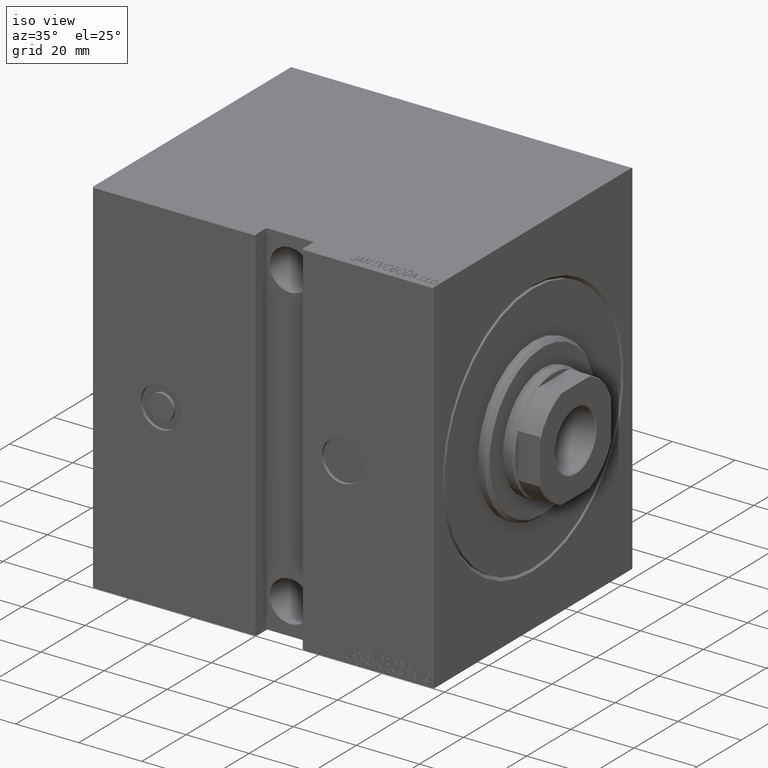
[diagram: clean part render]
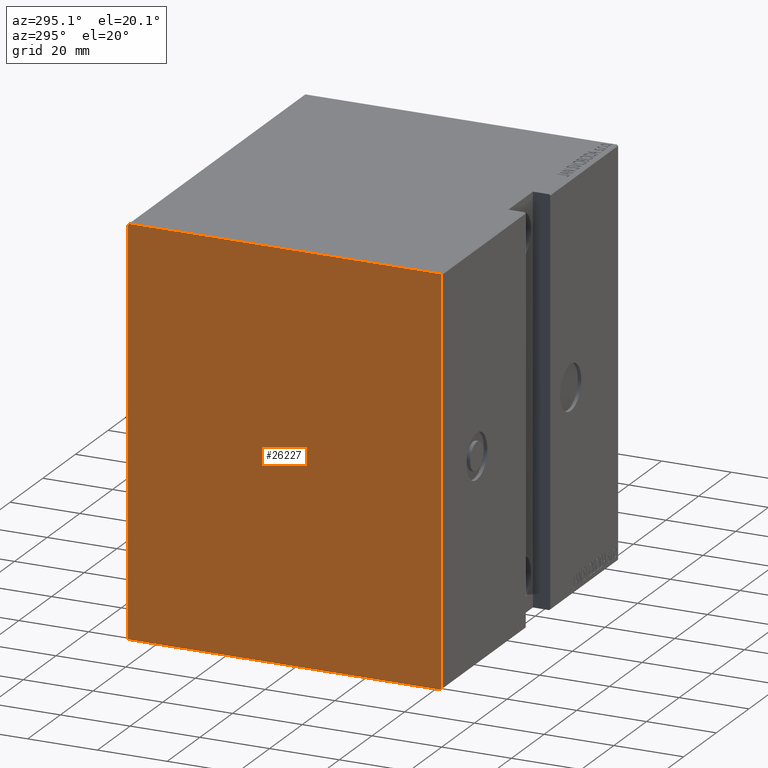
[diagram: tour spotlight — one face highlighted and labeled with its STEP entity id]
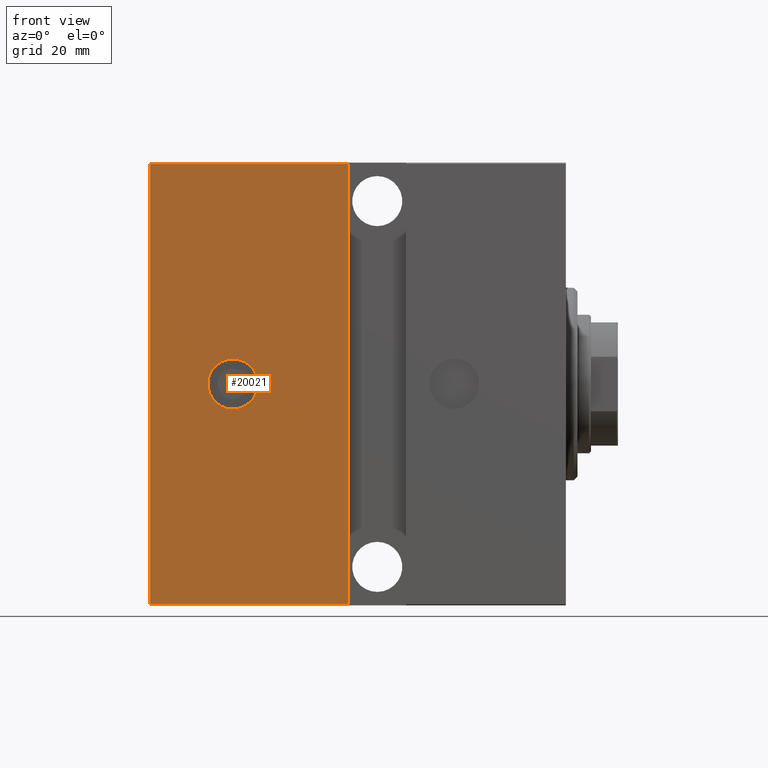
[diagram: tour spotlight — one face highlighted and labeled with its STEP entity id]
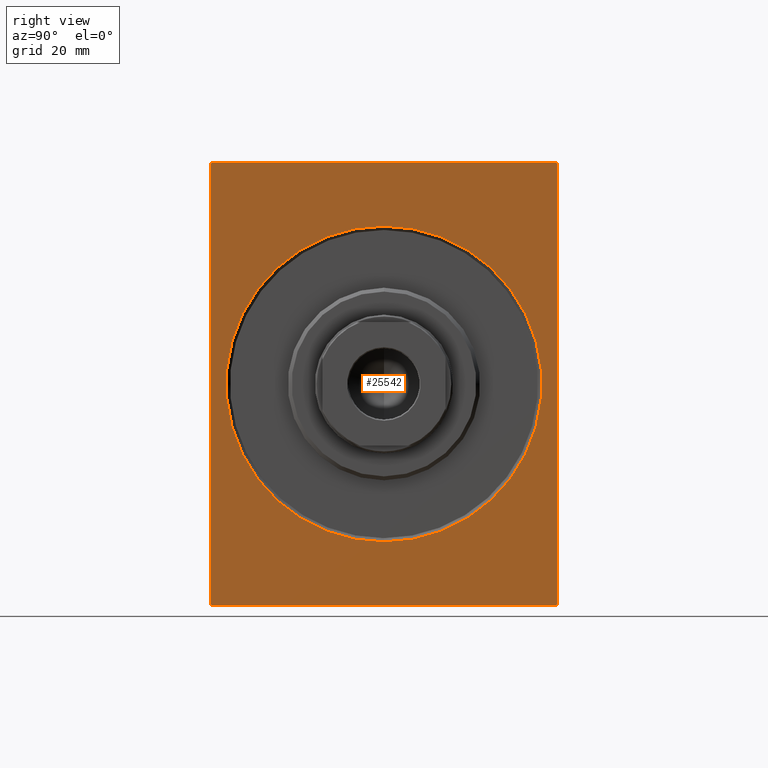
[diagram: tour spotlight — one face highlighted and labeled with its STEP entity id]
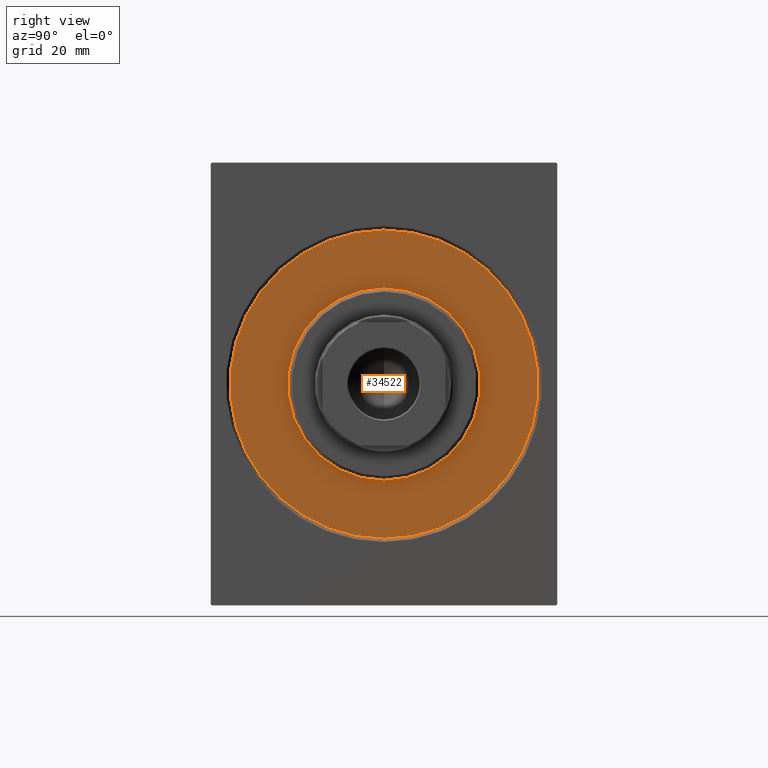
[diagram: tour spotlight — one face highlighted and labeled with its STEP entity id]
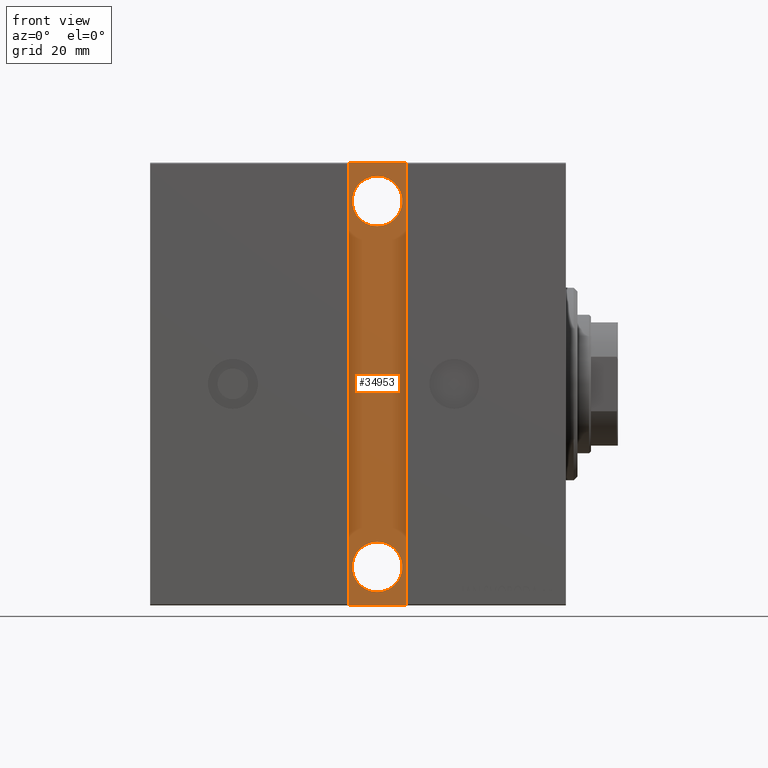
[diagram: tour spotlight — one face highlighted and labeled with its STEP entity id]
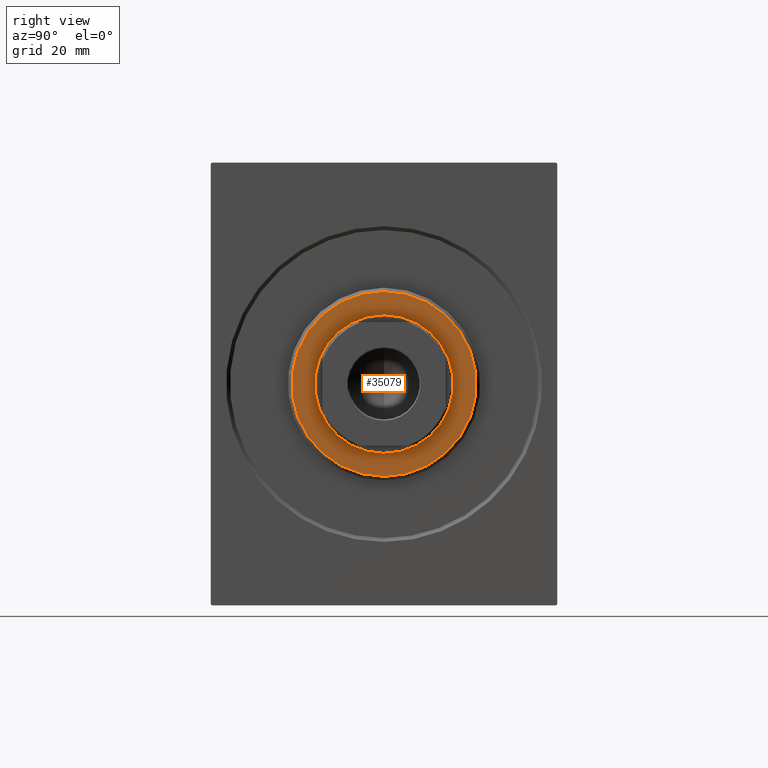
[diagram: tour spotlight — one face highlighted and labeled with its STEP entity id]
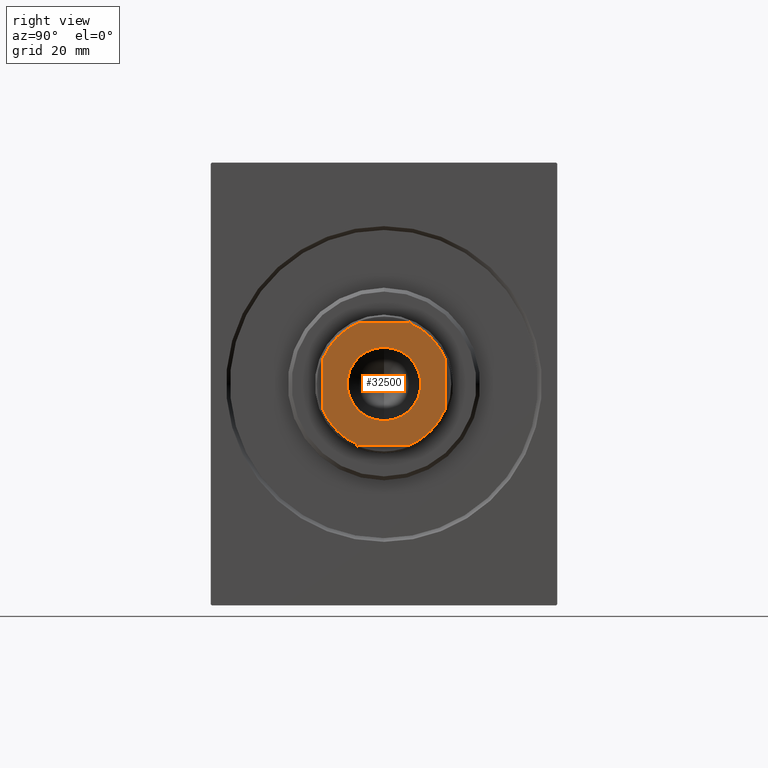
[diagram: tour spotlight — one face highlighted and labeled with its STEP entity id]
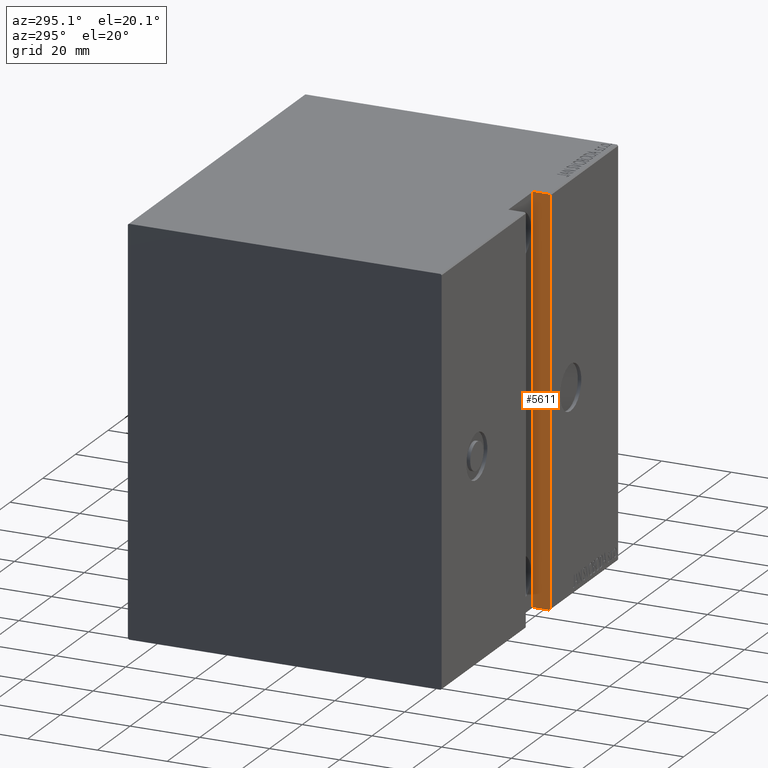
[diagram: tour spotlight — one face highlighted and labeled with its STEP entity id]
A machine part: a face-by-face anatomy tour. The part has 836 B-rep faces; the first image is the clean iso view, then the 8 largest visible faces are spotlighted one at a time (largest first), each with its STEP entity span.

Face 1 — auxiliary view, entity #26227. In plain terms, the highlighted planar face has unit normal (-1, 0, 0).
Definition (entity closure, byte-faithful):
#791 = LINE ( 'NONE', #40128, #38309 ) ;
#863 = VECTOR ( 'NONE', #30627, 1000.000000000000000 ) ;
#972 = CARTESIAN_POINT ( 'NONE',  ( 108.0000000000000000, -45.00000000000000000, -57.50000000000002132 ) ) ;
#1764 = DIRECTION ( 'NONE',  ( 1.000000000000000000, 0.000000000000000000, -0.000000000000000000 ) ) ;
#1981 = DIRECTION ( 'NONE',  ( -0.000000000000000000, 0.000000000000000000, -1.000000000000000000 ) ) ;
#2971 = EDGE_CURVE ( 'NONE', #36913, #36587, #4836, .T. ) ;
#4763 = ORIENTED_EDGE ( 'NONE', *, *, #13161, .T. ) ;
#4836 = LINE ( 'NONE', #21377, #9141 ) ;
#6172 = CARTESIAN_POINT ( 'NONE',  ( 108.0000000000000000, -45.00000000000000000, 57.20000000000000284 ) ) ;
#6655 = EDGE_CURVE ( 'NONE', #9335, #30089, #27615, .T. ) ;
#7834 = ORIENTED_EDGE ( 'NONE', *, *, #6655, .T. ) ;
#8430 = FACE_OUTER_BOUND ( 'NONE', #41883, .T. ) ;
#8501 = VERTEX_POINT ( 'NONE', #26160 ) ;
#8984 = EDGE_CURVE ( 'NONE', #8501, #36687, #19819, .T. ) ;
#9141 = VECTOR ( 'NONE', #17940, 1000.000000000000114 ) ;
#9335 = VERTEX_POINT ( 'NONE', #30719 ) ;
#9522 = LINE ( 'NONE', #26054, #13555 ) ;
#9946 = CARTESIAN_POINT ( 'NONE',  ( 108.0000000000000000, 45.00000000000001421, -57.50000000000000711 ) ) ;
#10151 = DIRECTION ( 'NONE',  ( 0.000000000000000000, -1.000000000000000000, -2.312964634635742957E-16 ) ) ;
#10888 = ORIENTED_EDGE ( 'NONE', *, *, #26812, .T. ) ;
#11133 = CARTESIAN_POINT ( 'NONE',  ( 108.0000000000000000, 44.70000000000001705, -57.50000000000000711 ) ) ;
#13161 = EDGE_CURVE ( 'NONE', #36587, #25335, #18937, .T. ) ;
#13555 = VECTOR ( 'NONE', #10151, 1000.000000000000000 ) ;
#15323 = EDGE_CURVE ( 'NONE', #30089, #8501, #15763, .T. ) ;
#15763 = LINE ( 'NONE', #32306, #25111 ) ;
#16390 = VERTEX_POINT ( 'NONE', #30720 ) ;
#17940 = DIRECTION ( 'NONE',  ( -0.000000000000000000, -0.7071067811865474617, -0.7071067811865474617 ) ) ;
#18093 = PLANE ( 'NONE',  #37593 ) ;
#18851 = ORIENTED_EDGE ( 'NONE', *, *, #15323, .T. ) ;
#18929 = CARTESIAN_POINT ( 'NONE',  ( 108.0000000000000000, 0.000000000000000000, 0.000000000000000000 ) ) ;
#18937 = LINE ( 'NONE', #19148, #22977 ) ;
#19148 = CARTESIAN_POINT ( 'NONE',  ( 108.0000000000000000, -45.00000000000000000, 57.49999999999999289 ) ) ;
#19359 = ORIENTED_EDGE ( 'NONE', *, *, #8984, .T. ) ;
#19819 = LINE ( 'NONE', #9946, #20126 ) ;
#20126 = VECTOR ( 'NONE', #32931, 1000.000000000000000 ) ;
#21377 = CARTESIAN_POINT ( 'NONE',  ( 108.0000000000000000, -51.10000000000000853, 51.10000000000000853 ) ) ;
#22977 = VECTOR ( 'NONE', #41727, 1000.000000000000000 ) ;
#23351 = DIRECTION ( 'NONE',  ( -0.000000000000000000, 0.7071067811865474617, -0.7071067811865474617 ) ) ;
#25111 = VECTOR ( 'NONE', #35320, 1000.000000000000114 ) ;
#25335 = VERTEX_POINT ( 'NONE', #29230 ) ;
#26054 = CARTESIAN_POINT ( 'NONE',  ( 108.0000000000000000, 45.00000000000001421, 57.50000000000001421 ) ) ;
#26099 = EDGE_CURVE ( 'NONE', #16390, #36913, #9522, .T. ) ;
#26160 = CARTESIAN_POINT ( 'NONE',  ( 108.0000000000000000, 45.00000000000001421, -57.20000000000004547 ) ) ;
#26227 = ADVANCED_FACE ( 'NONE', ( #8430 ), #18093, .T. ) ;
#26351 = EDGE_CURVE ( 'NONE', #36687, #16390, #39322, .T. ) ;
#26812 = EDGE_CURVE ( 'NONE', #25335, #9335, #791, .T. ) ;
#27615 = LINE ( 'NONE', #972, #863 ) ;
#28274 = ORIENTED_EDGE ( 'NONE', *, *, #26351, .T. ) ;
#29230 = CARTESIAN_POINT ( 'NONE',  ( 108.0000000000000000, -45.00000000000000000, -57.20000000000003126 ) ) ;
#29743 = CARTESIAN_POINT ( 'NONE',  ( 108.0000000000000000, -44.69999999999997442, 57.49999999999999289 ) ) ;
#30089 = VERTEX_POINT ( 'NONE', #11133 ) ;
#30627 = DIRECTION ( 'NONE',  ( 0.000000000000000000, 1.000000000000000000, 1.541976423090495140E-16 ) ) ;
#30719 = CARTESIAN_POINT ( 'NONE',  ( 108.0000000000000000, -44.70000000000003126, -57.50000000000002132 ) ) ;
#30720 = CARTESIAN_POINT ( 'NONE',  ( 108.0000000000000000, 44.70000000000001705, 57.50000000000001421 ) ) ;
#32306 = CARTESIAN_POINT ( 'NONE',  ( 108.0000000000000000, 51.10000000000002984, -51.10000000000002984 ) ) ;
#32931 = DIRECTION ( 'NONE',  ( 0.000000000000000000, 0.000000000000000000, 1.000000000000000000 ) ) ;
#33077 = DIRECTION ( 'NONE',  ( -0.000000000000000000, -0.7071067811865393571, 0.7071067811865556774 ) ) ;
#34483 = ORIENTED_EDGE ( 'NONE', *, *, #26099, .T. ) ;
#35222 = ORIENTED_EDGE ( 'NONE', *, *, #2971, .T. ) ;
#35320 = DIRECTION ( 'NONE',  ( -0.000000000000000000, 0.7071067811865474617, 0.7071067811865474617 ) ) ;
#35467 = CARTESIAN_POINT ( 'NONE',  ( 108.0000000000000000, 51.10000000000053433, 51.09999999999935483 ) ) ;
#36587 = VERTEX_POINT ( 'NONE', #6172 ) ;
#36687 = VERTEX_POINT ( 'NONE', #37517 ) ;
#36913 = VERTEX_POINT ( 'NONE', #29743 ) ;
#37517 = CARTESIAN_POINT ( 'NONE',  ( 108.0000000000000000, 45.00000000000001421, 57.19999999999998863 ) ) ;
#37593 = AXIS2_PLACEMENT_3D ( 'NONE', #18929, #1764, #1981 ) ;
#38309 = VECTOR ( 'NONE', #23351, 1000.000000000000114 ) ;
#39322 = LINE ( 'NONE', #35467, #41035 ) ;
#40128 = CARTESIAN_POINT ( 'NONE',  ( 108.0000000000000000, -51.10000000000002984, -51.10000000000002984 ) ) ;
#41035 = VECTOR ( 'NONE', #33077, 1000.000000000000000 ) ;
#41727 = DIRECTION ( 'NONE',  ( 0.000000000000000000, 0.000000000000000000, -1.000000000000000000 ) ) ;
#41883 = EDGE_LOOP ( 'NONE', ( #7834, #18851, #19359, #28274, #34483, #35222, #4763, #10888 ) ) ;

Face 2 — front view, entity #20021. In plain terms, the highlighted planar face has unit normal (0, 1, 0).
Definition (entity closure, byte-faithful):
#2429 = PLANE ( 'NONE',  #39606 ) ;
#3323 = CARTESIAN_POINT ( 'NONE',  ( 56.50000000000000000, 45.00000000000001421, -57.50000000000000711 ) ) ;
#6133 = EDGE_CURVE ( 'NONE', #8501, #40242, #26484, .T. ) ;
#7499 = DIRECTION ( 'NONE',  ( 2.465190328815661345E-32, 1.000000000000000000, 1.241259582663617744E-16 ) ) ;
#7709 = DIRECTION ( 'NONE',  ( 0.000000000000000000, 0.000000000000000000, 1.000000000000000000 ) ) ;
#8501 = VERTEX_POINT ( 'NONE', #26160 ) ;
#8984 = EDGE_CURVE ( 'NONE', #8501, #36687, #19819, .T. ) ;
#9556 = AXIS2_PLACEMENT_3D ( 'NONE', #20165, #10084, #7709 ) ;
#9946 = CARTESIAN_POINT ( 'NONE',  ( 108.0000000000000000, 45.00000000000001421, -57.50000000000000711 ) ) ;
#10084 = DIRECTION ( 'NONE',  ( 2.465190328815661345E-32, 1.000000000000000000, 1.241259582663617744E-16 ) ) ;
#10676 = CARTESIAN_POINT ( 'NONE',  ( 56.50000000000000000, 45.00000000000001421, -57.20000000000004547 ) ) ;
#10987 = CARTESIAN_POINT ( 'NONE',  ( 108.0000000000000000, 45.00000000000001421, 57.20000000000001705 ) ) ;
#11420 = DIRECTION ( 'NONE',  ( 1.000000000000000000, 0.000000000000000000, 0.000000000000000000 ) ) ;
#11473 = FACE_BOUND ( 'NONE', #18542, .T. ) ;
#11660 = CARTESIAN_POINT ( 'NONE',  ( 86.50000000000000000, 45.00000000000001421, 6.500000000000001776 ) ) ;
#11668 = CARTESIAN_POINT ( 'NONE',  ( 56.50000000000001421, 45.00000000000001421, 57.20000000000001705 ) ) ;
#11872 = EDGE_CURVE ( 'NONE', #33043, #40242, #39223, .T. ) ;
#12107 = DIRECTION ( 'NONE',  ( 0.000000000000000000, -0.000000000000000000, -1.000000000000000000 ) ) ;
#12178 = DIRECTION ( 'NONE',  ( -1.206764157201257291E-16, -0.000000000000000000, -1.000000000000000000 ) ) ;
#16198 = VERTEX_POINT ( 'NONE', #11660 ) ;
#16950 = DIRECTION ( 'NONE',  ( 0.000000000000000000, 0.000000000000000000, 1.000000000000000000 ) ) ;
#17623 = EDGE_CURVE ( 'NONE', #33043, #36687, #24083, .T. ) ;
#18542 = EDGE_LOOP ( 'NONE', ( #24385, #26510 ) ) ;
#18745 = CIRCLE ( 'NONE', #40678, 6.500000000000001776 ) ;
#19186 = CIRCLE ( 'NONE', #9556, 6.500000000000001776 ) ;
#19774 = ORIENTED_EDGE ( 'NONE', *, *, #11872, .F. ) ;
#19819 = LINE ( 'NONE', #9946, #20126 ) ;
#20021 = ADVANCED_FACE ( 'NONE', ( #11473, #37685 ), #2429, .F. ) ;
#20126 = VECTOR ( 'NONE', #32931, 1000.000000000000000 ) ;
#20165 = CARTESIAN_POINT ( 'NONE',  ( 86.50000000000000000, 45.00000000000001421, 2.685769492758762498E-31 ) ) ;
#20196 = ORIENTED_EDGE ( 'NONE', *, *, #8984, .F. ) ;
#21360 = ORIENTED_EDGE ( 'NONE', *, *, #17623, .T. ) ;
#22172 = EDGE_LOOP ( 'NONE', ( #20196, #22942, #19774, #21360 ) ) ;
#22942 = ORIENTED_EDGE ( 'NONE', *, *, #6133, .T. ) ;
#23477 = DIRECTION ( 'NONE',  ( -1.000000000000000000, 0.000000000000000000, 0.000000000000000000 ) ) ;
#24083 = LINE ( 'NONE', #10987, #32047 ) ;
#24385 = ORIENTED_EDGE ( 'NONE', *, *, #29965, .F. ) ;
#25860 = CARTESIAN_POINT ( 'NONE',  ( 108.0000000000000000, 45.00000000000001421, -57.20000000000004547 ) ) ;
#26160 = CARTESIAN_POINT ( 'NONE',  ( 108.0000000000000000, 45.00000000000001421, -57.20000000000004547 ) ) ;
#26484 = LINE ( 'NONE', #25860, #28323 ) ;
#26510 = ORIENTED_EDGE ( 'NONE', *, *, #37662, .F. ) ;
#28060 = VERTEX_POINT ( 'NONE', #34841 ) ;
#28323 = VECTOR ( 'NONE', #23477, 1000.000000000000000 ) ;
#29852 = CARTESIAN_POINT ( 'NONE',  ( 86.50000000000000000, 45.00000000000001421, 2.685769492758762498E-31 ) ) ;
#29965 = EDGE_CURVE ( 'NONE', #16198, #28060, #19186, .T. ) ;
#31669 = CARTESIAN_POINT ( 'NONE',  ( 108.0000000000000000, 45.00000000000001421, -57.50000000000000711 ) ) ;
#32047 = VECTOR ( 'NONE', #11420, 1000.000000000000000 ) ;
#32591 = VECTOR ( 'NONE', #12178, 1000.000000000000000 ) ;
#32931 = DIRECTION ( 'NONE',  ( 0.000000000000000000, 0.000000000000000000, 1.000000000000000000 ) ) ;
#33043 = VERTEX_POINT ( 'NONE', #11668 ) ;
#34841 = CARTESIAN_POINT ( 'NONE',  ( 86.50000000000000000, 45.00000000000001421, -6.500000000000001776 ) ) ;
#36687 = VERTEX_POINT ( 'NONE', #37517 ) ;
#37517 = CARTESIAN_POINT ( 'NONE',  ( 108.0000000000000000, 45.00000000000001421, 57.19999999999998863 ) ) ;
#37662 = EDGE_CURVE ( 'NONE', #28060, #16198, #18745, .T. ) ;
#37685 = FACE_OUTER_BOUND ( 'NONE', #22172, .T. ) ;
#38323 = DIRECTION ( 'NONE',  ( 0.000000000000000000, -1.000000000000000000, 0.000000000000000000 ) ) ;
#39223 = LINE ( 'NONE', #3323, #32591 ) ;
#39606 = AXIS2_PLACEMENT_3D ( 'NONE', #31669, #38323, #12107 ) ;
#40242 = VERTEX_POINT ( 'NONE', #10676 ) ;
#40678 = AXIS2_PLACEMENT_3D ( 'NONE', #29852, #7499, #16950 ) ;

Face 3 — right view, entity #25542. In plain terms, the highlighted planar face has unit normal (-1, 0, 0).
Definition (entity closure, byte-faithful):
#848 = ORIENTED_EDGE ( 'NONE', *, *, #33505, .T. ) ;
#854 = VERTEX_POINT ( 'NONE', #27851 ) ;
#1231 = DIRECTION ( 'NONE',  ( -0.000000000000000000, -0.7071067811865474617, -0.7071067811865474617 ) ) ;
#1509 = LINE ( 'NONE', #31607, #6663 ) ;
#2765 = VECTOR ( 'NONE', #1231, 1000.000000000000114 ) ;
#2966 = EDGE_CURVE ( 'NONE', #854, #7476, #8280, .T. ) ;
#3491 = DIRECTION ( 'NONE',  ( 0.000000000000000000, 0.000000000000000000, -1.000000000000000000 ) ) ;
#4029 = LINE ( 'NONE', #30036, #2765 ) ;
#4246 = EDGE_CURVE ( 'NONE', #32476, #7476, #7961, .T. ) ;
#4333 = CARTESIAN_POINT ( 'NONE',  ( 0.000000000000000000, -44.70000000000003126, -57.50000000000002132 ) ) ;
#4493 = ORIENTED_EDGE ( 'NONE', *, *, #4246, .T. ) ;
#4513 = VECTOR ( 'NONE', #10150, 1000.000000000000114 ) ;
#4732 = DIRECTION ( 'NONE',  ( -0.000000000000000000, 0.7071067811865393571, -0.7071067811865556774 ) ) ;
#4954 = ORIENTED_EDGE ( 'NONE', *, *, #15455, .T. ) ;
#5807 = CARTESIAN_POINT ( 'NONE',  ( 0.000000000000000000, -44.69999999999997442, 57.49999999999999289 ) ) ;
#5990 = AXIS2_PLACEMENT_3D ( 'NONE', #37162, #8370, #41465 ) ;
#6363 = ORIENTED_EDGE ( 'NONE', *, *, #17450, .T. ) ;
#6622 = VERTEX_POINT ( 'NONE', #33630 ) ;
#6663 = VECTOR ( 'NONE', #31395, 1000.000000000000000 ) ;
#6725 = CARTESIAN_POINT ( 'NONE',  ( 0.000000000000000000, 0.000000000000000000, 0.000000000000000000 ) ) ;
#7024 = DIRECTION ( 'NONE',  ( 0.000000000000000000, 1.000000000000000000, 1.541976423090495140E-16 ) ) ;
#7114 = CARTESIAN_POINT ( 'NONE',  ( 0.000000000000000000, 5.021051876504148963E-15, -41.00000000000000711 ) ) ;
#7476 = VERTEX_POINT ( 'NONE', #7485 ) ;
#7485 = CARTESIAN_POINT ( 'NONE',  ( 0.000000000000000000, 45.00000000000001421, 57.19999999999998863 ) ) ;
#7961 = LINE ( 'NONE', #14409, #38680 ) ;
#8119 = VERTEX_POINT ( 'NONE', #7114 ) ;
#8280 = LINE ( 'NONE', #40721, #31820 ) ;
#8370 = DIRECTION ( 'NONE',  ( 1.000000000000000000, 0.000000000000000000, -0.000000000000000000 ) ) ;
#8959 = EDGE_LOOP ( 'NONE', ( #25087, #4493, #9212, #848, #23788, #4954, #36521, #41167 ) ) ;
#9212 = ORIENTED_EDGE ( 'NONE', *, *, #2966, .F. ) ;
#10150 = DIRECTION ( 'NONE',  ( 0.000000000000000000, -0.7071067811865474617, 0.7071067811865474617 ) ) ;
#10867 = VECTOR ( 'NONE', #36142, 1000.000000000000114 ) ;
#12989 = VECTOR ( 'NONE', #3491, 1000.000000000000000 ) ;
#13162 = VERTEX_POINT ( 'NONE', #28619 ) ;
#14185 = AXIS2_PLACEMENT_3D ( 'NONE', #20001, #33113, #26664 ) ;
#14409 = CARTESIAN_POINT ( 'NONE',  ( 0.000000000000000000, 44.70000000000001705, 57.50000000000001421 ) ) ;
#14936 = VECTOR ( 'NONE', #7024, 1000.000000000000000 ) ;
#15455 = EDGE_CURVE ( 'NONE', #26382, #13162, #23886, .T. ) ;
#17450 = EDGE_CURVE ( 'NONE', #8119, #24813, #32717, .T. ) ;
#18555 = CIRCLE ( 'NONE', #41885, 41.00000000000000711 ) ;
#19511 = EDGE_CURVE ( 'NONE', #32476, #21916, #1509, .T. ) ;
#19554 = CARTESIAN_POINT ( 'NONE',  ( 0.000000000000000000, -44.70000000000003126, -57.50000000000002132 ) ) ;
#19732 = ORIENTED_EDGE ( 'NONE', *, *, #32913, .T. ) ;
#19807 = CARTESIAN_POINT ( 'NONE',  ( 0.000000000000000000, -45.00000000000000000, 57.20000000000000284 ) ) ;
#20001 = CARTESIAN_POINT ( 'NONE',  ( 0.000000000000000000, 0.000000000000000000, 0.000000000000000000 ) ) ;
#21916 = VERTEX_POINT ( 'NONE', #5807 ) ;
#22834 = DIRECTION ( 'NONE',  ( 0.000000000000000000, 0.000000000000000000, -1.000000000000000000 ) ) ;
#23039 = CARTESIAN_POINT ( 'NONE',  ( 0.000000000000000000, -45.00000000000000000, 57.49999999999999289 ) ) ;
#23788 = ORIENTED_EDGE ( 'NONE', *, *, #24391, .F. ) ;
#23886 = LINE ( 'NONE', #4333, #4513 ) ;
#24042 = PLANE ( 'NONE',  #5990 ) ;
#24391 = EDGE_CURVE ( 'NONE', #26382, #6622, #36038, .T. ) ;
#24813 = VERTEX_POINT ( 'NONE', #25677 ) ;
#25087 = ORIENTED_EDGE ( 'NONE', *, *, #19511, .F. ) ;
#25542 = ADVANCED_FACE ( 'NONE', ( #36725, #40385 ), #24042, .F. ) ;
#25677 = CARTESIAN_POINT ( 'NONE',  ( 0.000000000000000000, 0.000000000000000000, 41.00000000000000711 ) ) ;
#26273 = DIRECTION ( 'NONE',  ( 1.000000000000000000, 0.000000000000000000, -0.000000000000000000 ) ) ;
#26382 = VERTEX_POINT ( 'NONE', #19554 ) ;
#26458 = LINE ( 'NONE', #19807, #10867 ) ;
#26664 = DIRECTION ( 'NONE',  ( 0.000000000000000000, 0.000000000000000000, -1.000000000000000000 ) ) ;
#27803 = EDGE_CURVE ( 'NONE', #39242, #21916, #26458, .T. ) ;
#27851 = CARTESIAN_POINT ( 'NONE',  ( 0.000000000000000000, 45.00000000000001421, -57.20000000000004547 ) ) ;
#28619 = CARTESIAN_POINT ( 'NONE',  ( 0.000000000000000000, -45.00000000000000000, -57.20000000000003126 ) ) ;
#29806 = EDGE_CURVE ( 'NONE', #39242, #13162, #39588, .T. ) ;
#30036 = CARTESIAN_POINT ( 'NONE',  ( 0.000000000000000000, 45.00000000000001421, -57.20000000000004547 ) ) ;
#30838 = DIRECTION ( 'NONE',  ( 0.000000000000000000, 0.000000000000000000, 1.000000000000000000 ) ) ;
#31395 = DIRECTION ( 'NONE',  ( 0.000000000000000000, -1.000000000000000000, -2.312964634635742957E-16 ) ) ;
#31607 = CARTESIAN_POINT ( 'NONE',  ( 0.000000000000000000, 45.00000000000001421, 57.50000000000001421 ) ) ;
#31820 = VECTOR ( 'NONE', #30838, 1000.000000000000000 ) ;
#32476 = VERTEX_POINT ( 'NONE', #38034 ) ;
#32717 = CIRCLE ( 'NONE', #14185, 41.00000000000000711 ) ;
#32913 = EDGE_CURVE ( 'NONE', #24813, #8119, #18555, .T. ) ;
#33113 = DIRECTION ( 'NONE',  ( 1.000000000000000000, 0.000000000000000000, -0.000000000000000000 ) ) ;
#33505 = EDGE_CURVE ( 'NONE', #854, #6622, #4029, .T. ) ;
#33630 = CARTESIAN_POINT ( 'NONE',  ( 0.000000000000000000, 44.70000000000001705, -57.50000000000000711 ) ) ;
#35906 = EDGE_LOOP ( 'NONE', ( #19732, #6363 ) ) ;
#36038 = LINE ( 'NONE', #36459, #14936 ) ;
#36142 = DIRECTION ( 'NONE',  ( -0.000000000000000000, 0.7071067811865474617, 0.7071067811865474617 ) ) ;
#36459 = CARTESIAN_POINT ( 'NONE',  ( 0.000000000000000000, -45.00000000000000000, -57.50000000000002132 ) ) ;
#36521 = ORIENTED_EDGE ( 'NONE', *, *, #29806, .F. ) ;
#36725 = FACE_BOUND ( 'NONE', #35906, .T. ) ;
#37162 = CARTESIAN_POINT ( 'NONE',  ( 0.000000000000000000, 0.000000000000000000, 0.000000000000000000 ) ) ;
#38034 = CARTESIAN_POINT ( 'NONE',  ( 0.000000000000000000, 44.70000000000001705, 57.50000000000001421 ) ) ;
#38680 = VECTOR ( 'NONE', #4732, 1000.000000000000000 ) ;
#39242 = VERTEX_POINT ( 'NONE', #41017 ) ;
#39588 = LINE ( 'NONE', #23039, #12989 ) ;
#40385 = FACE_OUTER_BOUND ( 'NONE', #8959, .T. ) ;
#40721 = CARTESIAN_POINT ( 'NONE',  ( 0.000000000000000000, 45.00000000000001421, -57.50000000000000711 ) ) ;
#41017 = CARTESIAN_POINT ( 'NONE',  ( 0.000000000000000000, -45.00000000000000000, 57.20000000000000284 ) ) ;
#41167 = ORIENTED_EDGE ( 'NONE', *, *, #27803, .T. ) ;
#41465 = DIRECTION ( 'NONE',  ( -0.000000000000000000, 0.000000000000000000, -1.000000000000000000 ) ) ;
#41885 = AXIS2_PLACEMENT_3D ( 'NONE', #6725, #26273, #22834 ) ;

Face 4 — right view, entity #34522. In plain terms, the highlighted planar face has unit normal (1, 0, 0).
Definition (entity closure, byte-faithful):
#509 = VERTEX_POINT ( 'NONE', #6279 ) ;
#1221 = VERTEX_POINT ( 'NONE', #2438 ) ;
#1389 = EDGE_CURVE ( 'NONE', #22739, #509, #17294, .T. ) ;
#2112 = AXIS2_PLACEMENT_3D ( 'NONE', #38829, #42470, #25494 ) ;
#2315 = EDGE_LOOP ( 'NONE', ( #38731, #24712 ) ) ;
#2438 = CARTESIAN_POINT ( 'NONE',  ( 0.000000000000000000, 0.000000000000000000, 25.00000000000000000 ) ) ;
#2450 = CIRCLE ( 'NONE', #29858, 40.00000000000000000 ) ;
#4215 = EDGE_LOOP ( 'NONE', ( #23291, #21789 ) ) ;
#4877 = EDGE_CURVE ( 'NONE', #1221, #11462, #21438, .T. ) ;
#6279 = CARTESIAN_POINT ( 'NONE',  ( 0.000000000000000000, 4.898587196589413026E-15, 40.00000000000000000 ) ) ;
#9510 = DIRECTION ( 'NONE',  ( 0.000000000000000000, 0.000000000000000000, -1.000000000000000000 ) ) ;
#10141 = CARTESIAN_POINT ( 'NONE',  ( 0.000000000000000000, 0.000000000000000000, 0.000000000000000000 ) ) ;
#11462 = VERTEX_POINT ( 'NONE', #38437 ) ;
#13421 = EDGE_CURVE ( 'NONE', #509, #22739, #2450, .T. ) ;
#15209 = DIRECTION ( 'NONE',  ( 0.000000000000000000, 0.000000000000000000, -1.000000000000000000 ) ) ;
#16835 = EDGE_CURVE ( 'NONE', #11462, #1221, #37505, .T. ) ;
#17294 = CIRCLE ( 'NONE', #30343, 40.00000000000000000 ) ;
#18759 = DIRECTION ( 'NONE',  ( 0.000000000000000000, 0.000000000000000000, -1.000000000000000000 ) ) ;
#19581 = DIRECTION ( 'NONE',  ( 1.000000000000000000, -0.000000000000000000, 0.000000000000000000 ) ) ;
#21438 = CIRCLE ( 'NONE', #42110, 25.00000000000000000 ) ;
#21789 = ORIENTED_EDGE ( 'NONE', *, *, #13421, .T. ) ;
#22190 = CARTESIAN_POINT ( 'NONE',  ( 0.000000000000000000, 0.000000000000000000, 0.000000000000000000 ) ) ;
#22739 = VERTEX_POINT ( 'NONE', #24086 ) ;
#23291 = ORIENTED_EDGE ( 'NONE', *, *, #1389, .T. ) ;
#24086 = CARTESIAN_POINT ( 'NONE',  ( 0.000000000000000000, 0.000000000000000000, -40.00000000000000000 ) ) ;
#24712 = ORIENTED_EDGE ( 'NONE', *, *, #16835, .F. ) ;
#24867 = DIRECTION ( 'NONE',  ( 1.000000000000000000, 0.000000000000000000, 0.000000000000000000 ) ) ;
#25291 = FACE_OUTER_BOUND ( 'NONE', #4215, .T. ) ;
#25494 = DIRECTION ( 'NONE',  ( 0.000000000000000000, 0.000000000000000000, -1.000000000000000000 ) ) ;
#25813 = CARTESIAN_POINT ( 'NONE',  ( 0.000000000000000000, 0.000000000000000000, 0.000000000000000000 ) ) ;
#25832 = DIRECTION ( 'NONE',  ( 1.000000000000000000, 0.000000000000000000, 0.000000000000000000 ) ) ;
#29572 = PLANE ( 'NONE',  #2112 ) ;
#29858 = AXIS2_PLACEMENT_3D ( 'NONE', #31113, #24867, #15209 ) ;
#29951 = AXIS2_PLACEMENT_3D ( 'NONE', #25813, #19581, #39766 ) ;
#30343 = AXIS2_PLACEMENT_3D ( 'NONE', #10141, #25832, #9510 ) ;
#31113 = CARTESIAN_POINT ( 'NONE',  ( 0.000000000000000000, 0.000000000000000000, 0.000000000000000000 ) ) ;
#31966 = FACE_BOUND ( 'NONE', #2315, .T. ) ;
#34522 = ADVANCED_FACE ( 'NONE', ( #25291, #31966 ), #29572, .T. ) ;
#34671 = DIRECTION ( 'NONE',  ( 1.000000000000000000, -0.000000000000000000, 0.000000000000000000 ) ) ;
#37505 = CIRCLE ( 'NONE', #29951, 25.00000000000000000 ) ;
#38437 = CARTESIAN_POINT ( 'NONE',  ( 0.000000000000000000, 3.061616997868383043E-15, -25.00000000000000000 ) ) ;
#38731 = ORIENTED_EDGE ( 'NONE', *, *, #4877, .F. ) ;
#38829 = CARTESIAN_POINT ( 'NONE',  ( 0.000000000000000000, 0.000000000000000000, 0.000000000000000000 ) ) ;
#39766 = DIRECTION ( 'NONE',  ( 0.000000000000000000, 0.000000000000000000, -1.000000000000000000 ) ) ;
#42110 = AXIS2_PLACEMENT_3D ( 'NONE', #22190, #34671, #18759 ) ;
#42470 = DIRECTION ( 'NONE',  ( 1.000000000000000000, 0.000000000000000000, 0.000000000000000000 ) ) ;

Face 5 — front view, entity #34953. In plain terms, the highlighted planar face has unit normal (0, 1, 0).
Definition (entity closure, byte-faithful):
#1897 = CIRCLE ( 'NONE', #25894, 6.499999999999999112 ) ;
#1909 = CARTESIAN_POINT ( 'NONE',  ( 49.00000000000002132, 40.00000000000001421, 41.00000000000000000 ) ) ;
#2277 = AXIS2_PLACEMENT_3D ( 'NONE', #33215, #10022, #16255 ) ;
#2926 = VECTOR ( 'NONE', #34632, 1000.000000000000000 ) ;
#4118 = ORIENTED_EDGE ( 'NONE', *, *, #28697, .T. ) ;
#4151 = FACE_BOUND ( 'NONE', #22276, .T. ) ;
#4187 = DIRECTION ( 'NONE',  ( 1.000000000000000000, -0.000000000000000000, -0.000000000000000000 ) ) ;
#7036 = VERTEX_POINT ( 'NONE', #20473 ) ;
#8419 = CARTESIAN_POINT ( 'NONE',  ( 56.50000000000000000, 40.00000000000001421, -57.50000000000000711 ) ) ;
#8530 = CARTESIAN_POINT ( 'NONE',  ( 49.00000000000002132, 40.00000000000001421, -47.50000000000000000 ) ) ;
#9270 = CARTESIAN_POINT ( 'NONE',  ( 41.50000000000000000, 40.00000000000001421, -57.50000000000000711 ) ) ;
#9576 = CARTESIAN_POINT ( 'NONE',  ( 49.00000000000002132, 40.00000000000001421, 47.50000000000000000 ) ) ;
#10022 = DIRECTION ( 'NONE',  ( 0.000000000000000000, -1.000000000000000000, 0.000000000000000000 ) ) ;
#10302 = EDGE_CURVE ( 'NONE', #11392, #13414, #38090, .T. ) ;
#10339 = AXIS2_PLACEMENT_3D ( 'NONE', #14045, #38112, #14906 ) ;
#10857 = CARTESIAN_POINT ( 'NONE',  ( 56.50000000000001421, 40.00000000000001421, 57.49999999999997868 ) ) ;
#11247 = EDGE_LOOP ( 'NONE', ( #34555, #11773, #13078, #29405 ) ) ;
#11392 = VERTEX_POINT ( 'NONE', #23454 ) ;
#11773 = ORIENTED_EDGE ( 'NONE', *, *, #33728, .T. ) ;
#12437 = CIRCLE ( 'NONE', #2277, 6.499999999999999112 ) ;
#12780 = AXIS2_PLACEMENT_3D ( 'NONE', #15042, #14826, #24701 ) ;
#13078 = ORIENTED_EDGE ( 'NONE', *, *, #37437, .T. ) ;
#13414 = VERTEX_POINT ( 'NONE', #35166 ) ;
#14009 = VECTOR ( 'NONE', #21961, 1000.000000000000000 ) ;
#14045 = CARTESIAN_POINT ( 'NONE',  ( 0.000000000000000000, 40.00000000000001421, 0.000000000000000000 ) ) ;
#14164 = CARTESIAN_POINT ( 'NONE',  ( 56.50000000000001421, 40.00000000000001421, 57.49999999999997868 ) ) ;
#14756 = DIRECTION ( 'NONE',  ( 0.000000000000000000, -1.000000000000000000, 0.000000000000000000 ) ) ;
#14826 = DIRECTION ( 'NONE',  ( 0.000000000000000000, -1.000000000000000000, 0.000000000000000000 ) ) ;
#14906 = DIRECTION ( 'NONE',  ( 0.000000000000000000, -0.000000000000000000, -1.000000000000000000 ) ) ;
#15042 = CARTESIAN_POINT ( 'NONE',  ( 49.00000000000002132, 40.00000000000001421, 47.50000000000000000 ) ) ;
#16016 = DIRECTION ( 'NONE',  ( 0.000000000000000000, -1.000000000000000000, 0.000000000000000000 ) ) ;
#16253 = EDGE_CURVE ( 'NONE', #25642, #11392, #17877, .T. ) ;
#16255 = DIRECTION ( 'NONE',  ( 0.000000000000000000, 0.000000000000000000, -1.000000000000000000 ) ) ;
#16473 = EDGE_CURVE ( 'NONE', #36163, #23293, #23070, .T. ) ;
#17260 = FACE_OUTER_BOUND ( 'NONE', #11247, .T. ) ;
#17877 = LINE ( 'NONE', #25170, #29914 ) ;
#20473 = CARTESIAN_POINT ( 'NONE',  ( 49.00000000000002132, 40.00000000000001421, -54.00000000000000000 ) ) ;
#20488 = AXIS2_PLACEMENT_3D ( 'NONE', #9576, #16016, #29128 ) ;
#21494 = EDGE_CURVE ( 'NONE', #7036, #30901, #1897, .T. ) ;
#21744 = DIRECTION ( 'NONE',  ( -1.000000000000000000, 0.000000000000000000, 0.000000000000000000 ) ) ;
#21961 = DIRECTION ( 'NONE',  ( 1.206764157201257291E-16, 0.000000000000000000, 1.000000000000000000 ) ) ;
#22276 = EDGE_LOOP ( 'NONE', ( #28562, #33839 ) ) ;
#23070 = CIRCLE ( 'NONE', #12780, 6.499999999999999112 ) ;
#23293 = VERTEX_POINT ( 'NONE', #1909 ) ;
#23454 = CARTESIAN_POINT ( 'NONE',  ( 41.50000000000000000, 40.00000000000001421, -57.50000000000000711 ) ) ;
#23918 = CARTESIAN_POINT ( 'NONE',  ( 49.00000000000002132, 40.00000000000001421, 54.00000000000000000 ) ) ;
#24701 = DIRECTION ( 'NONE',  ( 0.000000000000000000, 0.000000000000000000, -1.000000000000000000 ) ) ;
#25170 = CARTESIAN_POINT ( 'NONE',  ( 56.50000000000000000, 40.00000000000001421, -57.50000000000000711 ) ) ;
#25642 = VERTEX_POINT ( 'NONE', #27702 ) ;
#25894 = AXIS2_PLACEMENT_3D ( 'NONE', #8530, #14756, #27640 ) ;
#26531 = LINE ( 'NONE', #10857, #37781 ) ;
#27640 = DIRECTION ( 'NONE',  ( 0.000000000000000000, 0.000000000000000000, -1.000000000000000000 ) ) ;
#27702 = CARTESIAN_POINT ( 'NONE',  ( 56.50000000000001421, 40.00000000000002132, -57.50000000000000711 ) ) ;
#28220 = VERTEX_POINT ( 'NONE', #14164 ) ;
#28562 = ORIENTED_EDGE ( 'NONE', *, *, #36589, .T. ) ;
#28697 = EDGE_CURVE ( 'NONE', #23293, #36163, #39026, .T. ) ;
#29128 = DIRECTION ( 'NONE',  ( 0.000000000000000000, 0.000000000000000000, -1.000000000000000000 ) ) ;
#29302 = ORIENTED_EDGE ( 'NONE', *, *, #16473, .T. ) ;
#29405 = ORIENTED_EDGE ( 'NONE', *, *, #16253, .T. ) ;
#29914 = VECTOR ( 'NONE', #21744, 1000.000000000000000 ) ;
#30374 = PLANE ( 'NONE',  #10339 ) ;
#30901 = VERTEX_POINT ( 'NONE', #39767 ) ;
#30951 = EDGE_LOOP ( 'NONE', ( #29302, #4118 ) ) ;
#30978 = LINE ( 'NONE', #8419, #2926 ) ;
#33215 = CARTESIAN_POINT ( 'NONE',  ( 49.00000000000002132, 40.00000000000001421, -47.50000000000000000 ) ) ;
#33728 = EDGE_CURVE ( 'NONE', #13414, #28220, #26531, .T. ) ;
#33839 = ORIENTED_EDGE ( 'NONE', *, *, #21494, .T. ) ;
#34555 = ORIENTED_EDGE ( 'NONE', *, *, #10302, .T. ) ;
#34632 = DIRECTION ( 'NONE',  ( -1.206764157201257291E-16, -0.000000000000000000, -1.000000000000000000 ) ) ;
#34953 = ADVANCED_FACE ( 'NONE', ( #40048, #4151, #17260 ), #30374, .F. ) ;
#35166 = CARTESIAN_POINT ( 'NONE',  ( 41.50000000000001421, 40.00000000000001421, 57.49999999999997868 ) ) ;
#36163 = VERTEX_POINT ( 'NONE', #23918 ) ;
#36589 = EDGE_CURVE ( 'NONE', #30901, #7036, #12437, .T. ) ;
#37437 = EDGE_CURVE ( 'NONE', #28220, #25642, #30978, .T. ) ;
#37781 = VECTOR ( 'NONE', #4187, 1000.000000000000000 ) ;
#38090 = LINE ( 'NONE', #9270, #14009 ) ;
#38112 = DIRECTION ( 'NONE',  ( 0.000000000000000000, -1.000000000000000000, 0.000000000000000000 ) ) ;
#39026 = CIRCLE ( 'NONE', #20488, 6.499999999999999112 ) ;
#39767 = CARTESIAN_POINT ( 'NONE',  ( 49.00000000000002132, 40.00000000000001421, -41.00000000000000000 ) ) ;
#40048 = FACE_BOUND ( 'NONE', #30951, .T. ) ;

Face 6 — right view, entity #35079. In plain terms, the highlighted planar face has unit normal (1, 0, 0).
Definition (entity closure, byte-faithful):
#458 = AXIS2_PLACEMENT_3D ( 'NONE', #33120, #20436, #13568 ) ;
#2436 = CARTESIAN_POINT ( 'NONE',  ( 3.000000000000000000, 0.000000000000000000, 0.000000000000000000 ) ) ;
#3371 = CARTESIAN_POINT ( 'NONE',  ( 3.000000000000000000, 0.000000000000000000, -18.00000000000000000 ) ) ;
#4348 = VERTEX_POINT ( 'NONE', #28999 ) ;
#6062 = PLANE ( 'NONE',  #17176 ) ;
#8336 = CIRCLE ( 'NONE', #23393, 18.00000000000000000 ) ;
#8663 = DIRECTION ( 'NONE',  ( 1.000000000000000000, 0.000000000000000000, 0.000000000000000000 ) ) ;
#10904 = CIRCLE ( 'NONE', #22540, 18.00000000000000000 ) ;
#11892 = DIRECTION ( 'NONE',  ( 0.000000000000000000, 0.000000000000000000, -1.000000000000000000 ) ) ;
#13342 = CARTESIAN_POINT ( 'NONE',  ( 3.000000000000000000, 2.204364238465235033E-15, 18.00000000000000000 ) ) ;
#13568 = DIRECTION ( 'NONE',  ( 0.000000000000000000, 0.000000000000000000, -1.000000000000000000 ) ) ;
#14328 = DIRECTION ( 'NONE',  ( 0.000000000000000000, 0.000000000000000000, -1.000000000000000000 ) ) ;
#14872 = EDGE_LOOP ( 'NONE', ( #20685, #31650 ) ) ;
#15576 = CIRCLE ( 'NONE', #458, 23.99999999999997868 ) ;
#15740 = CARTESIAN_POINT ( 'NONE',  ( 3.000000000000000000, 0.000000000000000000, 0.000000000000000000 ) ) ;
#17176 = AXIS2_PLACEMENT_3D ( 'NONE', #15740, #41550, #41958 ) ;
#17526 = DIRECTION ( 'NONE',  ( 1.000000000000000000, -0.000000000000000000, 0.000000000000000000 ) ) ;
#17760 = CARTESIAN_POINT ( 'NONE',  ( 3.000000000000000000, 0.000000000000000000, 0.000000000000000000 ) ) ;
#18433 = EDGE_CURVE ( 'NONE', #4348, #41837, #15576, .T. ) ;
#18971 = DIRECTION ( 'NONE',  ( 0.000000000000000000, 0.000000000000000000, -1.000000000000000000 ) ) ;
#19394 = VERTEX_POINT ( 'NONE', #13342 ) ;
#20436 = DIRECTION ( 'NONE',  ( 1.000000000000000000, -0.000000000000000000, 0.000000000000000000 ) ) ;
#20587 = EDGE_CURVE ( 'NONE', #41837, #4348, #21120, .T. ) ;
#20685 = ORIENTED_EDGE ( 'NONE', *, *, #35258, .F. ) ;
#21120 = CIRCLE ( 'NONE', #32770, 23.99999999999997868 ) ;
#22540 = AXIS2_PLACEMENT_3D ( 'NONE', #17760, #37316, #14328 ) ;
#23393 = AXIS2_PLACEMENT_3D ( 'NONE', #25603, #8663, #11892 ) ;
#24492 = CARTESIAN_POINT ( 'NONE',  ( 3.000000000000000000, 3.000384657911014285E-15, -23.99999999999997868 ) ) ;
#25603 = CARTESIAN_POINT ( 'NONE',  ( 3.000000000000000000, 0.000000000000000000, 0.000000000000000000 ) ) ;
#25804 = VERTEX_POINT ( 'NONE', #3371 ) ;
#26998 = ORIENTED_EDGE ( 'NONE', *, *, #20587, .T. ) ;
#28531 = EDGE_CURVE ( 'NONE', #19394, #25804, #10904, .T. ) ;
#28999 = CARTESIAN_POINT ( 'NONE',  ( 3.000000000000000000, 0.000000000000000000, 23.99999999999997868 ) ) ;
#31650 = ORIENTED_EDGE ( 'NONE', *, *, #28531, .F. ) ;
#31875 = FACE_OUTER_BOUND ( 'NONE', #37773, .T. ) ;
#32770 = AXIS2_PLACEMENT_3D ( 'NONE', #2436, #17526, #18971 ) ;
#33120 = CARTESIAN_POINT ( 'NONE',  ( 3.000000000000000000, 0.000000000000000000, 0.000000000000000000 ) ) ;
#35079 = ADVANCED_FACE ( 'NONE', ( #31875, #38739 ), #6062, .T. ) ;
#35258 = EDGE_CURVE ( 'NONE', #25804, #19394, #8336, .T. ) ;
#37316 = DIRECTION ( 'NONE',  ( 1.000000000000000000, 0.000000000000000000, 0.000000000000000000 ) ) ;
#37773 = EDGE_LOOP ( 'NONE', ( #40133, #26998 ) ) ;
#38739 = FACE_BOUND ( 'NONE', #14872, .T. ) ;
#40133 = ORIENTED_EDGE ( 'NONE', *, *, #18433, .T. ) ;
#41550 = DIRECTION ( 'NONE',  ( 1.000000000000000000, -0.000000000000000000, 0.000000000000000000 ) ) ;
#41837 = VERTEX_POINT ( 'NONE', #24492 ) ;
#41958 = DIRECTION ( 'NONE',  ( 0.000000000000000000, 0.000000000000000000, -1.000000000000000000 ) ) ;

Face 7 — right view, entity #32500. In plain terms, the highlighted planar face has unit normal (1, 0, -0).
Definition (entity closure, byte-faithful):
#232 = CARTESIAN_POINT ( 'NONE',  ( -15.99999999999999645, -6.311893535223839891, 104.0000000000000142 ) ) ;
#290 = EDGE_CURVE ( 'NONE', #8397, #20032, #10184, .T. ) ;
#606 = CARTESIAN_POINT ( 'NONE',  ( 9.550000000000002487, 0.000000000000000000, 104.0000000000000142 ) ) ;
#964 = CARTESIAN_POINT ( 'NONE',  ( 0.000000000000000000, 0.000000000000000000, 104.0000000000000142 ) ) ;
#1167 = AXIS2_PLACEMENT_3D ( 'NONE', #32764, #3318, #29542 ) ;
#1397 = VERTEX_POINT ( 'NONE', #6076 ) ;
#1484 = DIRECTION ( 'NONE',  ( 1.000000000000000000, 0.000000000000000000, 0.000000000000000000 ) ) ;
#1713 = PLANE ( 'NONE',  #24020 ) ;
#2070 = EDGE_CURVE ( 'NONE', #22076, #14458, #24166, .T. ) ;
#2268 = CARTESIAN_POINT ( 'NONE',  ( -16.00000000000000000, 16.00000000000000000, 104.0000000000000142 ) ) ;
#3318 = DIRECTION ( 'NONE',  ( -0.000000000000000000, 0.000000000000000000, 1.000000000000000000 ) ) ;
#3868 = CIRCLE ( 'NONE', #23094, 17.19999999999996732 ) ;
#3912 = CARTESIAN_POINT ( 'NONE',  ( 0.000000000000000000, 0.000000000000000000, 104.0000000000000142 ) ) ;
#4617 = DIRECTION ( 'NONE',  ( 0.000000000000000000, -0.000000000000000000, -1.000000000000000000 ) ) ;
#5847 = EDGE_CURVE ( 'NONE', #14458, #22076, #17341, .T. ) ;
#6076 = CARTESIAN_POINT ( 'NONE',  ( -15.99999999999999645, 6.311893535223721763, 104.0000000000000142 ) ) ;
#6119 = DIRECTION ( 'NONE',  ( -1.000000000000000000, -0.000000000000000000, -0.000000000000000000 ) ) ;
#6711 = CARTESIAN_POINT ( 'NONE',  ( 0.000000000000000000, 0.000000000000000000, 104.0000000000000142 ) ) ;
#6957 = EDGE_CURVE ( 'NONE', #18691, #37866, #29938, .T. ) ;
#7566 = DIRECTION ( 'NONE',  ( 1.000000000000000000, 0.000000000000000000, 0.000000000000000000 ) ) ;
#8397 = VERTEX_POINT ( 'NONE', #38856 ) ;
#9150 = CARTESIAN_POINT ( 'NONE',  ( 16.00000000000000000, 6.311893535223851437, 104.0000000000000142 ) ) ;
#9540 = EDGE_CURVE ( 'NONE', #37866, #8397, #40764, .T. ) ;
#9895 = AXIS2_PLACEMENT_3D ( 'NONE', #18472, #31372, #24477 ) ;
#9986 = ORIENTED_EDGE ( 'NONE', *, *, #30480, .T. ) ;
#10184 = LINE ( 'NONE', #13198, #37185 ) ;
#10392 = DIRECTION ( 'NONE',  ( -1.084202172485504434E-16, 1.000000000000000000, -0.000000000000000000 ) ) ;
#11173 = CARTESIAN_POINT ( 'NONE',  ( 0.000000000000000000, 0.000000000000000000, 104.0000000000000142 ) ) ;
#11363 = EDGE_CURVE ( 'NONE', #18228, #14350, #37589, .T. ) ;
#11387 = DIRECTION ( 'NONE',  ( 1.000000000000000000, 0.000000000000000000, 0.000000000000000000 ) ) ;
#11407 = AXIS2_PLACEMENT_3D ( 'NONE', #3912, #30130, #7566 ) ;
#11638 = DIRECTION ( 'NONE',  ( -0.000000000000000000, 0.000000000000000000, 1.000000000000000000 ) ) ;
#13119 = ORIENTED_EDGE ( 'NONE', *, *, #23716, .T. ) ;
#13198 = CARTESIAN_POINT ( 'NONE',  ( -16.00000000000000000, 16.00000000000000000, 104.0000000000000142 ) ) ;
#13940 = VECTOR ( 'NONE', #10392, 1000.000000000000000 ) ;
#14350 = VERTEX_POINT ( 'NONE', #23929 ) ;
#14458 = VERTEX_POINT ( 'NONE', #40484 ) ;
#15967 = DIRECTION ( 'NONE',  ( 0.000000000000000000, -0.000000000000000000, -1.000000000000000000 ) ) ;
#16122 = EDGE_CURVE ( 'NONE', #14350, #18691, #22371, .T. ) ;
#16737 = CARTESIAN_POINT ( 'NONE',  ( 16.00000000000000355, -6.311893535223839891, 104.0000000000000142 ) ) ;
#17341 = CIRCLE ( 'NONE', #24179, 9.550000000000002487 ) ;
#17677 = EDGE_CURVE ( 'NONE', #20032, #1397, #3868, .T. ) ;
#18228 = VERTEX_POINT ( 'NONE', #28243 ) ;
#18260 = DIRECTION ( 'NONE',  ( -0.000000000000000000, 0.000000000000000000, 1.000000000000000000 ) ) ;
#18472 = CARTESIAN_POINT ( 'NONE',  ( 0.000000000000000000, 0.000000000000000000, 104.0000000000000142 ) ) ;
#18691 = VERTEX_POINT ( 'NONE', #16737 ) ;
#19724 = EDGE_LOOP ( 'NONE', ( #35326, #25180 ) ) ;
#20032 = VERTEX_POINT ( 'NONE', #25200 ) ;
#20183 = VECTOR ( 'NONE', #1484, 1000.000000000000000 ) ;
#21755 = VERTEX_POINT ( 'NONE', #232 ) ;
#21901 = FACE_OUTER_BOUND ( 'NONE', #28421, .T. ) ;
#21922 = VECTOR ( 'NONE', #38569, 1000.000000000000000 ) ;
#22076 = VERTEX_POINT ( 'NONE', #606 ) ;
#22371 = CIRCLE ( 'NONE', #11407, 17.20000000000001350 ) ;
#22614 = DIRECTION ( 'NONE',  ( 1.000000000000000000, 0.000000000000000000, 0.000000000000000000 ) ) ;
#23094 = AXIS2_PLACEMENT_3D ( 'NONE', #40857, #11638, #37846 ) ;
#23301 = ORIENTED_EDGE ( 'NONE', *, *, #6957, .T. ) ;
#23716 = EDGE_CURVE ( 'NONE', #21755, #18228, #29309, .T. ) ;
#23929 = CARTESIAN_POINT ( 'NONE',  ( 6.311893535223840779, -16.00000000000000000, 104.0000000000000142 ) ) ;
#24020 = AXIS2_PLACEMENT_3D ( 'NONE', #11173, #18260, #11387 ) ;
#24166 = CIRCLE ( 'NONE', #27584, 9.550000000000002487 ) ;
#24179 = AXIS2_PLACEMENT_3D ( 'NONE', #964, #4617, #37500 ) ;
#24477 = DIRECTION ( 'NONE',  ( 1.000000000000000000, 0.000000000000000000, 0.000000000000000000 ) ) ;
#25013 = ORIENTED_EDGE ( 'NONE', *, *, #290, .T. ) ;
#25180 = ORIENTED_EDGE ( 'NONE', *, *, #5847, .T. ) ;
#25200 = CARTESIAN_POINT ( 'NONE',  ( -6.311893535223715546, 16.00000000000000000, 104.0000000000000142 ) ) ;
#25264 = ORIENTED_EDGE ( 'NONE', *, *, #9540, .T. ) ;
#27584 = AXIS2_PLACEMENT_3D ( 'NONE', #6711, #15967, #22614 ) ;
#28141 = CARTESIAN_POINT ( 'NONE',  ( -15.99999999999999289, -16.00000000000000000, 104.0000000000000142 ) ) ;
#28243 = CARTESIAN_POINT ( 'NONE',  ( -6.311893535223827456, -16.00000000000000000, 104.0000000000000142 ) ) ;
#28421 = EDGE_LOOP ( 'NONE', ( #23301, #25264, #25013, #31065, #9986, #13119, #31257, #33732 ) ) ;
#29309 = CIRCLE ( 'NONE', #1167, 17.20000000000000995 ) ;
#29542 = DIRECTION ( 'NONE',  ( 1.000000000000000000, 0.000000000000000000, 0.000000000000000000 ) ) ;
#29938 = LINE ( 'NONE', #39823, #13940 ) ;
#30130 = DIRECTION ( 'NONE',  ( -0.000000000000000000, 0.000000000000000000, 1.000000000000000000 ) ) ;
#30480 = EDGE_CURVE ( 'NONE', #1397, #21755, #31710, .T. ) ;
#31065 = ORIENTED_EDGE ( 'NONE', *, *, #17677, .T. ) ;
#31257 = ORIENTED_EDGE ( 'NONE', *, *, #11363, .T. ) ;
#31372 = DIRECTION ( 'NONE',  ( -0.000000000000000000, 0.000000000000000000, 1.000000000000000000 ) ) ;
#31710 = LINE ( 'NONE', #2268, #21922 ) ;
#32500 = ADVANCED_FACE ( 'NONE', ( #34154, #21901 ), #1713, .T. ) ;
#32764 = CARTESIAN_POINT ( 'NONE',  ( 0.000000000000000000, 0.000000000000000000, 104.0000000000000142 ) ) ;
#33732 = ORIENTED_EDGE ( 'NONE', *, *, #16122, .T. ) ;
#34154 = FACE_BOUND ( 'NONE', #19724, .T. ) ;
#35326 = ORIENTED_EDGE ( 'NONE', *, *, #2070, .T. ) ;
#37185 = VECTOR ( 'NONE', #6119, 1000.000000000000000 ) ;
#37500 = DIRECTION ( 'NONE',  ( 1.000000000000000000, 0.000000000000000000, 0.000000000000000000 ) ) ;
#37589 = LINE ( 'NONE', #28141, #20183 ) ;
#37846 = DIRECTION ( 'NONE',  ( 1.000000000000000000, 0.000000000000000000, 0.000000000000000000 ) ) ;
#37866 = VERTEX_POINT ( 'NONE', #9150 ) ;
#38569 = DIRECTION ( 'NONE',  ( 2.168404344971008868E-16, -1.000000000000000000, 0.000000000000000000 ) ) ;
#38856 = CARTESIAN_POINT ( 'NONE',  ( 6.311893535223850549, 16.00000000000000000, 104.0000000000000142 ) ) ;
#39823 = CARTESIAN_POINT ( 'NONE',  ( 16.00000000000000000, 16.00000000000000000, 104.0000000000000142 ) ) ;
#40484 = CARTESIAN_POINT ( 'NONE',  ( -9.550000000000002487, 1.169537693185722558E-15, 104.0000000000000142 ) ) ;
#40764 = CIRCLE ( 'NONE', #9895, 17.20000000000001705 ) ;
#40857 = CARTESIAN_POINT ( 'NONE',  ( 0.000000000000000000, 0.000000000000000000, 104.0000000000000142 ) ) ;

Face 8 — auxiliary view, entity #5611. In plain terms, the highlighted planar face has unit normal (1, 0, 0).
Definition (entity closure, byte-faithful):
#297 = CARTESIAN_POINT ( 'NONE',  ( 41.50000000000000000, 45.00000000000001421, -57.20000000000004547 ) ) ;
#730 = VECTOR ( 'NONE', #15004, 1000.000000000000000 ) ;
#1553 = AXIS2_PLACEMENT_3D ( 'NONE', #39024, #34969, #12394 ) ;
#1891 = CARTESIAN_POINT ( 'NONE',  ( 41.50000000000000000, 45.00000000000001421, -57.50000000000000711 ) ) ;
#3193 = VECTOR ( 'NONE', #29225, 1000.000000000000000 ) ;
#4566 = VERTEX_POINT ( 'NONE', #8346 ) ;
#4679 = VERTEX_POINT ( 'NONE', #16203 ) ;
#5611 = ADVANCED_FACE ( 'NONE', ( #21649 ), #38818, .F. ) ;
#8346 = CARTESIAN_POINT ( 'NONE',  ( 41.50000000000000000, 44.70000000000004547, -57.50000000000000711 ) ) ;
#9270 = CARTESIAN_POINT ( 'NONE',  ( 41.50000000000000000, 40.00000000000001421, -57.50000000000000711 ) ) ;
#10302 = EDGE_CURVE ( 'NONE', #11392, #13414, #38090, .T. ) ;
#11392 = VERTEX_POINT ( 'NONE', #23454 ) ;
#12394 = DIRECTION ( 'NONE',  ( 1.206764157201257291E-16, 0.000000000000000000, 1.000000000000000000 ) ) ;
#13038 = DIRECTION ( 'NONE',  ( -0.000000000000000000, 1.000000000000000000, -0.000000000000000000 ) ) ;
#13104 = CARTESIAN_POINT ( 'NONE',  ( 41.50000000000000000, 40.00000000000001421, -57.50000000000000711 ) ) ;
#13414 = VERTEX_POINT ( 'NONE', #35166 ) ;
#13936 = EDGE_CURVE ( 'NONE', #36999, #4679, #37882, .T. ) ;
#14009 = VECTOR ( 'NONE', #21961, 1000.000000000000000 ) ;
#15004 = DIRECTION ( 'NONE',  ( 1.206764157201257291E-16, 0.000000000000000000, 1.000000000000000000 ) ) ;
#15099 = ORIENTED_EDGE ( 'NONE', *, *, #18657, .T. ) ;
#16203 = CARTESIAN_POINT ( 'NONE',  ( 41.50000000000001421, 44.70000000000001705, 57.49999999999997868 ) ) ;
#16896 = EDGE_LOOP ( 'NONE', ( #23305, #20193, #41892, #30338, #15099, #35848 ) ) ;
#17483 = CARTESIAN_POINT ( 'NONE',  ( 41.50000000000001421, 45.00000000000001421, 57.20000000000001705 ) ) ;
#18426 = VECTOR ( 'NONE', #36559, 1000.000000000000114 ) ;
#18657 = EDGE_CURVE ( 'NONE', #11392, #4566, #42540, .T. ) ;
#20193 = ORIENTED_EDGE ( 'NONE', *, *, #13936, .T. ) ;
#21231 = LINE ( 'NONE', #34345, #31557 ) ;
#21649 = FACE_OUTER_BOUND ( 'NONE', #16896, .T. ) ;
#21756 = DIRECTION ( 'NONE',  ( 8.533111188498877384E-17, -0.7071067811865393571, 0.7071067811865556774 ) ) ;
#21961 = DIRECTION ( 'NONE',  ( 1.206764157201257291E-16, 0.000000000000000000, 1.000000000000000000 ) ) ;
#23305 = ORIENTED_EDGE ( 'NONE', *, *, #34470, .T. ) ;
#23446 = LINE ( 'NONE', #40432, #18426 ) ;
#23454 = CARTESIAN_POINT ( 'NONE',  ( 41.50000000000000000, 40.00000000000001421, -57.50000000000000711 ) ) ;
#23908 = VERTEX_POINT ( 'NONE', #297 ) ;
#27927 = EDGE_CURVE ( 'NONE', #4566, #23908, #23446, .T. ) ;
#29225 = DIRECTION ( 'NONE',  ( -0.000000000000000000, 1.000000000000000000, -0.000000000000000000 ) ) ;
#30338 = ORIENTED_EDGE ( 'NONE', *, *, #10302, .F. ) ;
#31336 = LINE ( 'NONE', #1891, #730 ) ;
#31557 = VECTOR ( 'NONE', #13038, 1000.000000000000000 ) ;
#31961 = VECTOR ( 'NONE', #21756, 1000.000000000000000 ) ;
#34345 = CARTESIAN_POINT ( 'NONE',  ( 41.50000000000001421, 40.00000000000001421, 57.49999999999997868 ) ) ;
#34470 = EDGE_CURVE ( 'NONE', #23908, #36999, #31336, .T. ) ;
#34969 = DIRECTION ( 'NONE',  ( -1.000000000000000000, 0.000000000000000000, 1.206764157201257291E-16 ) ) ;
#35166 = CARTESIAN_POINT ( 'NONE',  ( 41.50000000000001421, 40.00000000000001421, 57.49999999999997868 ) ) ;
#35848 = ORIENTED_EDGE ( 'NONE', *, *, #27927, .T. ) ;
#36559 = DIRECTION ( 'NONE',  ( 8.533111188498778777E-17, 0.7071067811865474617, 0.7071067811865474617 ) ) ;
#36999 = VERTEX_POINT ( 'NONE', #17483 ) ;
#37453 = CARTESIAN_POINT ( 'NONE',  ( 41.50000000000000711, 44.70000000000000995, 57.50000000000002132 ) ) ;
#37882 = LINE ( 'NONE', #37453, #31961 ) ;
#38090 = LINE ( 'NONE', #9270, #14009 ) ;
#38452 = EDGE_CURVE ( 'NONE', #13414, #4679, #21231, .T. ) ;
#38818 = PLANE ( 'NONE',  #1553 ) ;
#39024 = CARTESIAN_POINT ( 'NONE',  ( 41.50000000000000000, 40.00000000000001421, -57.50000000000000711 ) ) ;
#40432 = CARTESIAN_POINT ( 'NONE',  ( 41.49999999999999289, 45.00000000000002132, -57.20000000000003837 ) ) ;
#41892 = ORIENTED_EDGE ( 'NONE', *, *, #38452, .F. ) ;
#42540 = LINE ( 'NONE', #13104, #3193 ) ;